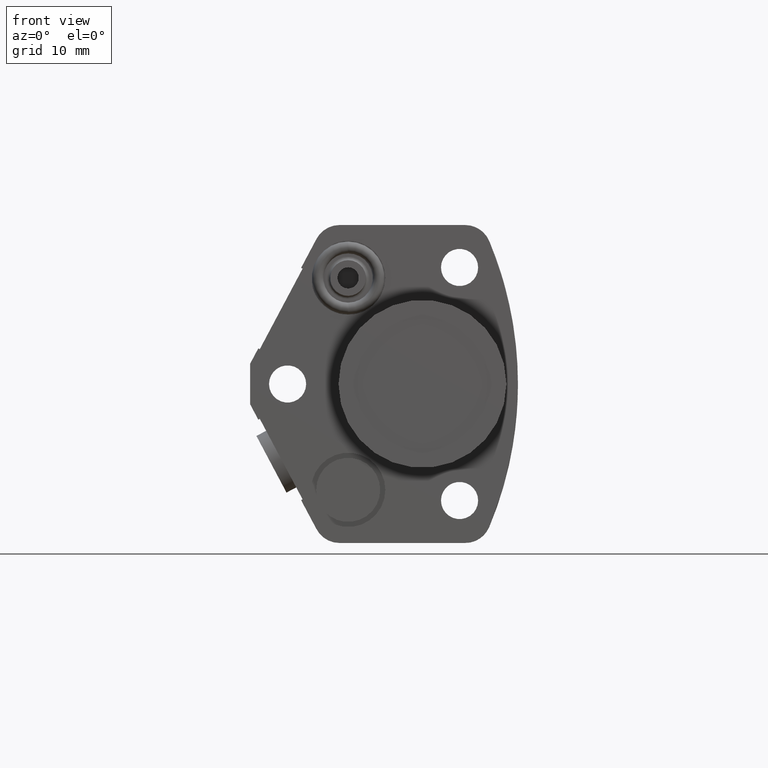
[diagram: clean part render]
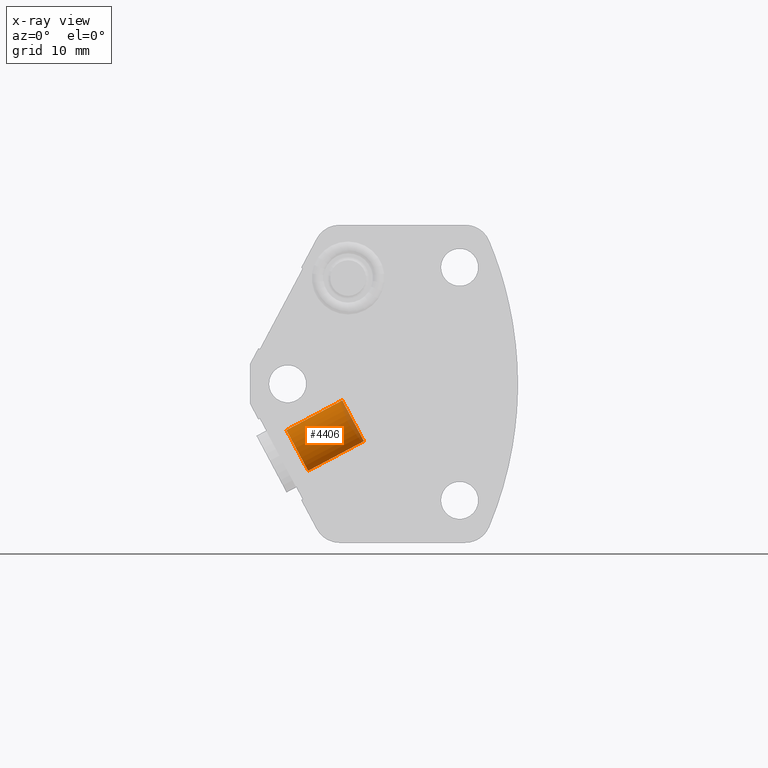
[diagram: x-ray — body ghosted, one internal face saturated and labeled with its STEP entity id]
A machine part, front view, then the same camera in x-ray: the body is ghosted and one INTERNAL B-rep face — a face not visible from any outside direction — is saturated and labeled: STEP entity #4406.
In plain terms, the highlighted cylindrical surface (edge-blend (fillet) strip) has radius 3.4544 mm, axis along (-0.8829, 0, -0.4695).
Its self-contained STEP definition (entity closure, byte-faithful):
#4258=CARTESIAN_POINT('',(-7.379882235696E-1,3.13E-1,-3.923952989270E-1));
#4259=DIRECTION('',(-8.829475928589E-1,0.E0,-4.694715627859E-1));
#4260=DIRECTION('',(4.694715627859E-1,0.E0,-8.829475928589E-1));
#4261=AXIS2_PLACEMENT_3D('',#4258,#4259,#4260);
#4266=CARTESIAN_POINT('',(-4.088047354937E-1,3.13E-1,-2.173653335699E-1));
#4267=DIRECTION('',(-8.829475928589E-1,0.E0,-4.694715627859E-1));
#4268=DIRECTION('',(4.694715627859E-1,0.E0,-8.829475928589E-1));
#4269=AXIS2_PLACEMENT_3D('',#4266,#4267,#4268);
#4274=DIRECTION('',(-8.829475928589E-1,0.E0,-4.694715627859E-1));
#4275=VECTOR('',#4274,3.728233597761E-1);
#4276=CARTESIAN_POINT('',(-3.449566029548E-1,3.13E-1,-3.374462061987E-1));
#4277=LINE('',#4276,#4275);
#4289=DIRECTION('',(-8.829475928589E-1,0.E0,-4.694715627859E-1));
#4290=VECTOR('',#4289,3.728233597761E-1);
#4291=CARTESIAN_POINT('',(-4.726528680326E-1,3.13E-1,-9.728446094105E-2));
#4292=LINE('',#4291,#4290);
#4296=CARTESIAN_POINT('',(-3.449566029548E-1,3.13E-1,-3.374462061987E-1));
#4297=CARTESIAN_POINT('',(-6.741400910307E-1,3.13E-1,-5.124761715559E-1));
#4298=VERTEX_POINT('',#4296);
#4299=VERTEX_POINT('',#4297);
#4302=CARTESIAN_POINT('',(-4.726528680326E-1,3.13E-1,-9.728446094105E-2));
#4303=CARTESIAN_POINT('',(-8.018363561085E-1,3.13E-1,-2.723144262982E-1));
#4304=VERTEX_POINT('',#4302);
#4305=VERTEX_POINT('',#4303);
#4392=CARTESIAN_POINT('',(-3.876139932651E-1,3.13E-1,-2.060980160630E-1));
#4393=DIRECTION('',(-8.829475928589E-1,0.E0,-4.694715627859E-1));
#4394=DIRECTION('',(4.694715627859E-1,0.E0,-8.829475928589E-1));
#4395=AXIS2_PLACEMENT_3D('',#4392,#4393,#4394);
#4396=CYLINDRICAL_SURFACE('',#4395,1.36E-1);
#4398=ORIENTED_EDGE('',*,*,#4397,.T.);
#4399=ORIENTED_EDGE('',*,*,#4387,.T.);
#4401=ORIENTED_EDGE('',*,*,#4400,.F.);
#4403=ORIENTED_EDGE('',*,*,#4402,.F.);
#4404=EDGE_LOOP('',(#4398,#4399,#4401,#4403));
#4405=FACE_OUTER_BOUND('',#4404,.F.);
#4262=CIRCLE('',#4261,1.36E-1);
#4270=CIRCLE('',#4269,1.36E-1);
#4387=EDGE_CURVE('',#4299,#4305,#4262,.T.);
#4397=EDGE_CURVE('',#4298,#4299,#4277,.T.);
#4400=EDGE_CURVE('',#4304,#4305,#4292,.T.);
#4402=EDGE_CURVE('',#4298,#4304,#4270,.T.);
#4406=ADVANCED_FACE('',(#4405),#4396,.T.);